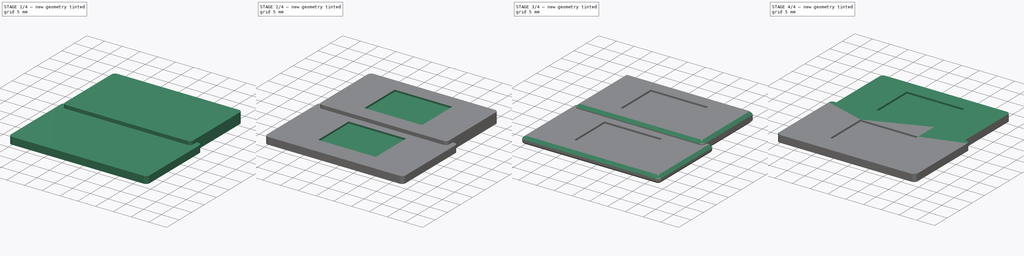
[diagram: build sequence overview — one tinted view per stage of 4, left to right]
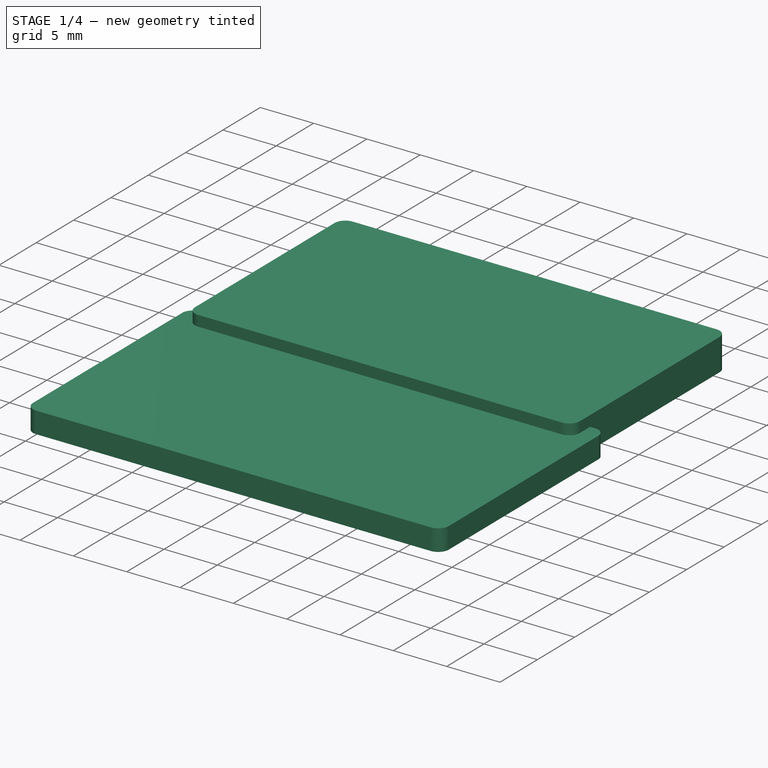
[diagram: stage 1 of 4 — iso view after this stage's code; geometry added in this stage tinted green]
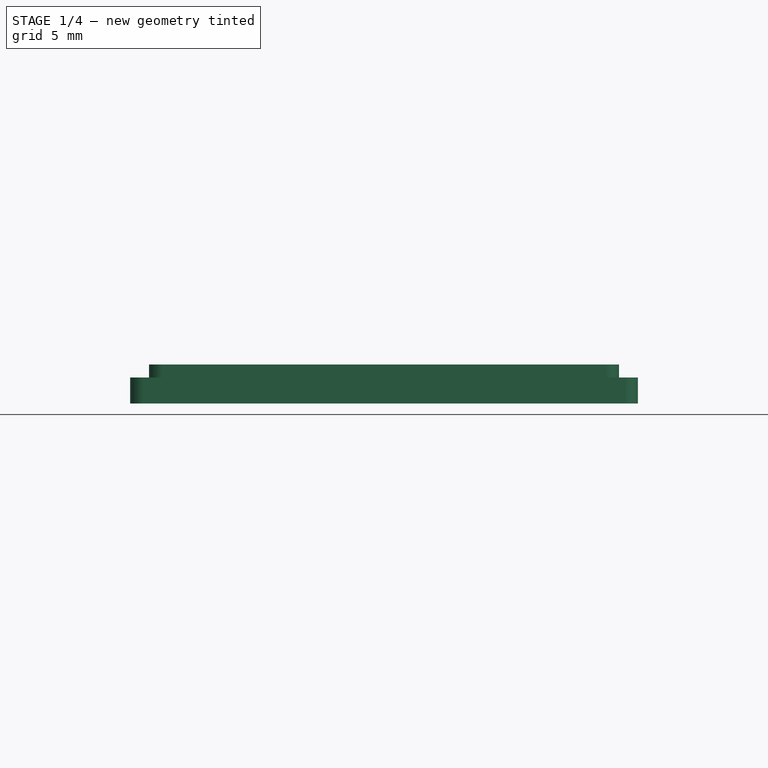
[diagram: stage 1 of 4 — front view after this stage's code; geometry added in this stage tinted green]
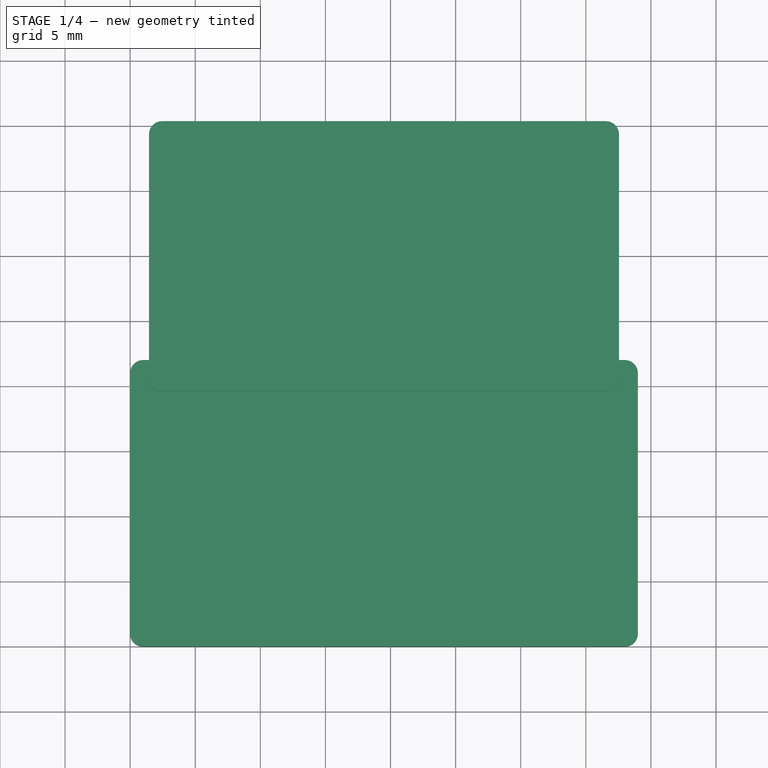
[diagram: stage 1 of 4 — top view after this stage's code; geometry added in this stage tinted green]
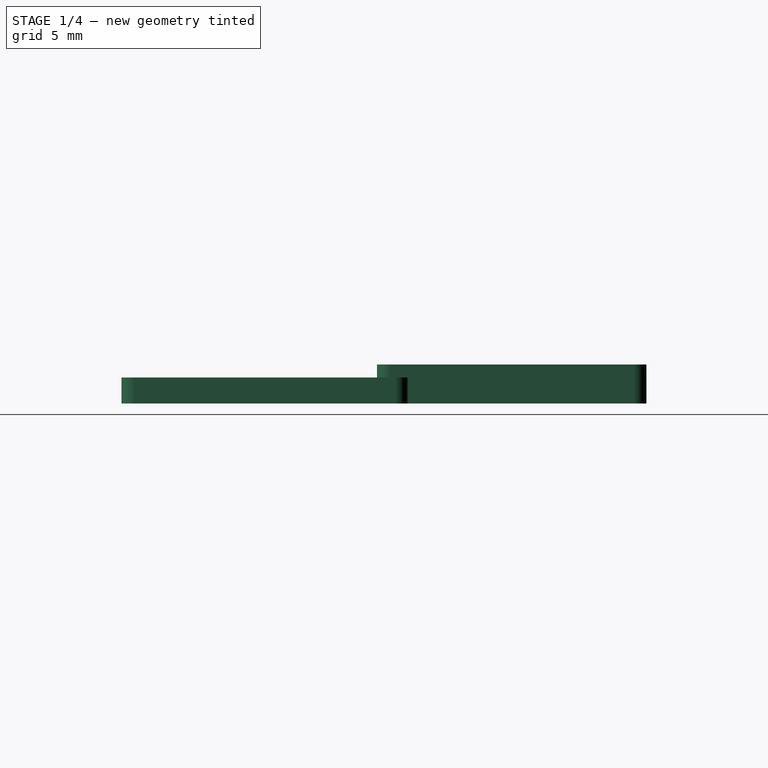
[diagram: stage 1 of 4 — right view after this stage's code; geometry added in this stage tinted green]
FCSTD DOCUMENT  (FreeCAD 0.20R29177 +426 (Git))
Label: DS Icon
License: All rights reserved
LicenseURL: http://en.wikipedia.org/wiki/All_rights_reserved
objects: Sketcher::SketchObject×5, PartDesign::Pocket×3, PartDesign::Pad×2, PartDesign::Chamfer×2, PartDesign::Body×2, PartDesign::Fillet×1, PartDesign::FeatureBase×1, PartDesign::ShapeBinder×1, App::Part×1
note: 25 computed .brp shape members not serialized (recipe doc carries the construction recipe); baked Part::Feature solids carry a one-line shape summary decoded from their .brp

FEATURE [Sketcher::SketchObject] Sketch
  FullyConstrained = true
  MapMode = 5
  Support = -> [XY_Plane001]
  sketch-geometry (24):
    g0: LineSegment StartX=0 StartY=0 StartZ=0 EndX=39 EndY=0 EndZ=0
    g1: LineSegment StartX=39 StartY=0 StartZ=0 EndX=39 EndY=22 EndZ=0
    g2: LineSegment StartX=39 StartY=22 StartZ=0 EndX=0 EndY=22 EndZ=0
    g3: LineSegment StartX=0 StartY=22 StartZ=0 EndX=0 EndY=0 EndZ=0
    g4: LineSegment StartX=1.45 StartY=0 StartZ=0 EndX=37.55 EndY=0 EndZ=0
    g5: LineSegment StartX=37.55 StartY=0 StartZ=0 EndX=37.55 EndY=40.33 EndZ=0
    g6: LineSegment StartX=37.55 StartY=40.33 StartZ=0 EndX=1.45 EndY=40.33 EndZ=0
    g7: LineSegment StartX=1.45 StartY=40.33 StartZ=0 EndX=1.45 EndY=0 EndZ=0
    g8: LineSegment StartX=0 StartY=22 StartZ=0 EndX=1.45 EndY=40.33 EndZ=0
    g9: LineSegment StartX=37.55 StartY=40.33 StartZ=0 EndX=39 EndY=22 EndZ=0
    g10: ArcOfCircle CenterX=1 CenterY=21 CenterZ=0 NormalX=0 NormalY=0 NormalZ=1 AngleXU=0 Radius=1 StartAngle=1.5708 EndAngle=3.14159
    g11: ArcOfCircle CenterX=1 CenterY=1 CenterZ=0 NormalX=0 NormalY=0 NormalZ=1 AngleXU=0 Radius=1 StartAngle=3.14159 EndAngle=4.71239
    g12: ArcOfCircle CenterX=38 CenterY=1 CenterZ=0 NormalX=0 NormalY=0 NormalZ=1 AngleXU=0 Radius=1 StartAngle=4.71239 EndAngle=6.28319
    g13: ArcOfCircle CenterX=38 CenterY=21 CenterZ=0 NormalX=0 NormalY=0 NormalZ=1 AngleXU=0 Radius=1 StartAngle=-1.8e-15 EndAngle=1.5708
    g14: ArcOfCircle CenterX=36.55 CenterY=39.33 CenterZ=0 NormalX=0 NormalY=0 NormalZ=1 AngleXU=0 Radius=1 StartAngle=2e-16 EndAngle=1.5708
    g15: ArcOfCircle CenterX=2.45 CenterY=39.33 CenterZ=0 NormalX=0 NormalY=0 NormalZ=1 AngleXU=0 Radius=1 StartAngle=1.5708 EndAngle=3.14159
    g16: LineSegment StartX=2.45 StartY=40.33 StartZ=0 EndX=36.55 EndY=40.33 EndZ=0
    g17: LineSegment StartX=37.55 StartY=39.33 StartZ=0 EndX=37.55 EndY=22 EndZ=0
    g18: LineSegment StartX=37.55 StartY=22 StartZ=0 EndX=38 EndY=22 EndZ=0
    g19: LineSegment StartX=39 StartY=21 StartZ=0 EndX=39 EndY=1 EndZ=0
    g20: LineSegment StartX=38 StartY=0 StartZ=0 EndX=1 EndY=0 EndZ=0
    g21: LineSegment StartX=0 StartY=1 StartZ=0 EndX=0 EndY=21 EndZ=0
    g22: LineSegment StartX=1 StartY=22 StartZ=0 EndX=1.45 EndY=22 EndZ=0
    g23: LineSegment StartX=1.45 StartY=22 StartZ=0 EndX=1.45 EndY=39.33 EndZ=0
  constraints (63):
    c: Coincident(g0,g1)
    c: Coincident(g1,g2)
    c: Coincident(g2,g3)
    c: Coincident(g3,g0)
    c: Horizontal(g0)
    c: Horizontal(g2)
    c: Vertical(g1)
    c: Vertical(g3)
    c: Coincident(g0,g-1)
    c: Distance(g0) = 39
    c: Distance(g1) = 22
    c: Coincident(g4,g5)
    c: Coincident(g5,g6)
    c: Coincident(g6,g7)
    c: Coincident(g7,g4)
    c: Horizontal(g4)
    c: Horizontal(g6)
    c: Vertical(g5)
    c: Vertical(g7)
    c: PointOnObject(g4,g0)
    c: Distance(g7) = 40.33
    c: Distance(g6) = 36.1
    c: Coincident(g8,g2)
    c: Coincident(g8,g6)
    c: Coincident(g9,g5)
    c: Coincident(g9,g1)
    c: Equal(g9,g8)
    c: Tangent(g15,g6) = -1.5708
    c: Tangent(g15,g7) = -1.5708
    c: Tangent(g14,g6) = -1.5708
    c: Tangent(g14,g5) = -1.5708
    c: Tangent(g13,g2) = -1.5708
    c: Tangent(g13,g1) = -1.5708
    c: Tangent(g12,g1) = -1.5708
    c: Tangent(g12,g0) = -1.5708
    c: Tangent(g11,g0) = -1.5708
    c: Tangent(g11,g3) = -1.5708
    c: Tangent(g10,g3) = -1.5708
    c: Tangent(g10,g2) = -1.5708
    c: Equal(g10,g11)
    c: Equal(g11,g12)
    c: Equal(g12,g13)
    c: Equal(g13,g14)
    c: Equal(g14,g15)
    c: Radius(g14) = 1
    c: Coincident(g16,g15)
    c: Coincident(g16,g14)
    c: Coincident(g17,g14)
    c: PointOnObject(g17,g2)
    c: Vertical(g17)
    c: Coincident(g18,g17)
    c: Coincident(g18,g13)
    c: Coincident(g19,g13)
    c: Coincident(g19,g12)
    c: Coincident(g20,g12)
    c: Coincident(g20,g11)
    c: Coincident(g21,g11)
    c: Coincident(g21,g10)
    c: Coincident(g22,g10)
    c: PointOnObject(g22,g7)
    c: Horizontal(g22)
    c: Coincident(g23,g22)
    c: Coincident(g23,g15)
FEATURE [PartDesign::Pad] Pad
  Direction = (0,0,1)
  Length = 2
  Length2 = 10
  Profile = -> Sketch
  ReferenceAxis = -> Sketch [N_Axis]
  Type = 0
FEATURE [Sketcher::SketchObject] Sketch001
  ExternalGeometry = -> [Pad]
  FullyConstrained = true
  MapMode = 5
  Placement = pos=(0,0,2) rot=(0,0,1;0rad)
  Support = -> [Pad]
  sketch-geometry (8):
    g0: LineSegment StartX=1.45 StartY=39.33 StartZ=0 EndX=1.45 EndY=20.63 EndZ=0
    g1: LineSegment StartX=2.45 StartY=40.33 StartZ=0 EndX=36.55 EndY=40.33 EndZ=0
    g2: LineSegment StartX=37.55 StartY=39.33 StartZ=0 EndX=37.55 EndY=20.63 EndZ=0
    g3: ArcOfCircle CenterX=2.45 CenterY=20.63 CenterZ=0 NormalX=0 NormalY=0 NormalZ=1 AngleXU=0 Radius=1 StartAngle=3.14159 EndAngle=4.71239
    g4: ArcOfCircle CenterX=36.55 CenterY=20.63 CenterZ=0 NormalX=0 NormalY=0 NormalZ=1 AngleXU=0 Radius=1 StartAngle=4.71239 EndAngle=6.28319
    g5: LineSegment StartX=2.45 StartY=19.63 StartZ=0 EndX=36.55 EndY=19.63 EndZ=0
    g6: ArcOfCircle CenterX=2.45 CenterY=39.33 CenterZ=0 NormalX=0 NormalY=0 NormalZ=1 AngleXU=0 Radius=1 StartAngle=1.5708 EndAngle=3.14159
    g7: ArcOfCircle CenterX=36.55 CenterY=39.33 CenterZ=0 NormalX=0 NormalY=0 NormalZ=1 AngleXU=0 Radius=1 StartAngle=1.8e-15 EndAngle=1.5708
  constraints (20):
    c: Coincident(g0,g-3)
    c: Vertical(g0)
    c: Coincident(g1,g-3)
    c: Coincident(g1,g-4)
    c: Coincident(g2,g-4)
    c: Vertical(g2)
    c: Tangent(g3,g0) = -1.5708
    c: Tangent(g4,g2) = 1.5708
    c: Equal(g-3,g3)
    c: Equal(g3,g4)
    c: Horizontal(g5)
    c: Tangent(g5,g3) = -1.5708
    c: Tangent(g5,g4) = -1.5708
    c: Distance(g4,g1) = 20.7
    c: Coincident(g6,g0)
    c: Coincident(g6,g1)
    c: Coincident(g7,g1)
    c: Coincident(g7,g2)
    c: Equal(g-4,g7)
    c: Equal(g-3,g6)
FEATURE [PartDesign::Pad] Pad001
  BaseFeature = -> Pad
  Direction = (0,0,1)
  Length = 1
  Length2 = 10
  Profile = -> Sketch001
  ReferenceAxis = -> Sketch001 [N_Axis]
  Refine = true
  Type = 0
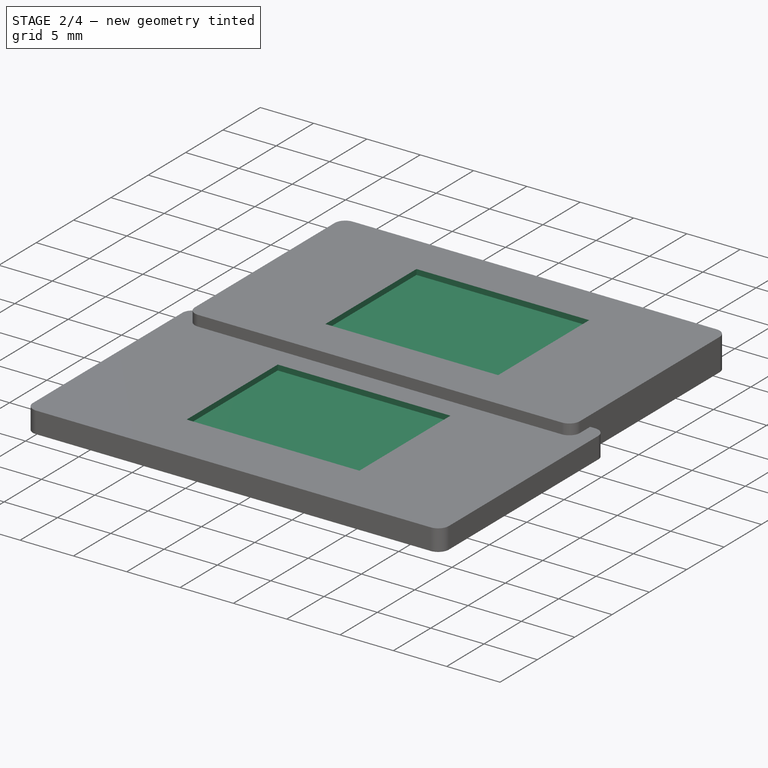
[diagram: stage 2 of 4 — iso view after this stage's code; geometry added in this stage tinted green]
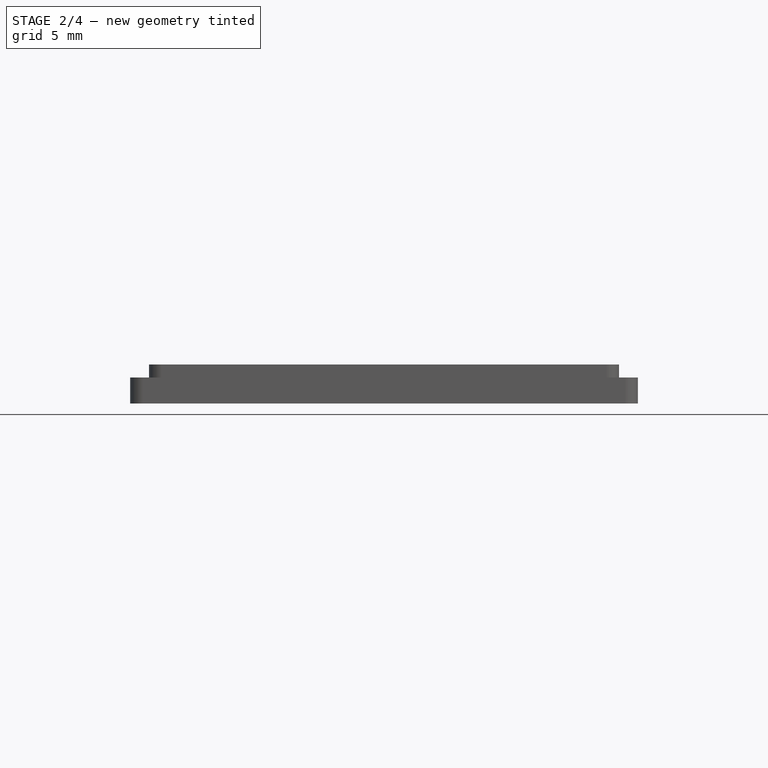
[diagram: stage 2 of 4 — front view after this stage's code; geometry added in this stage tinted green]
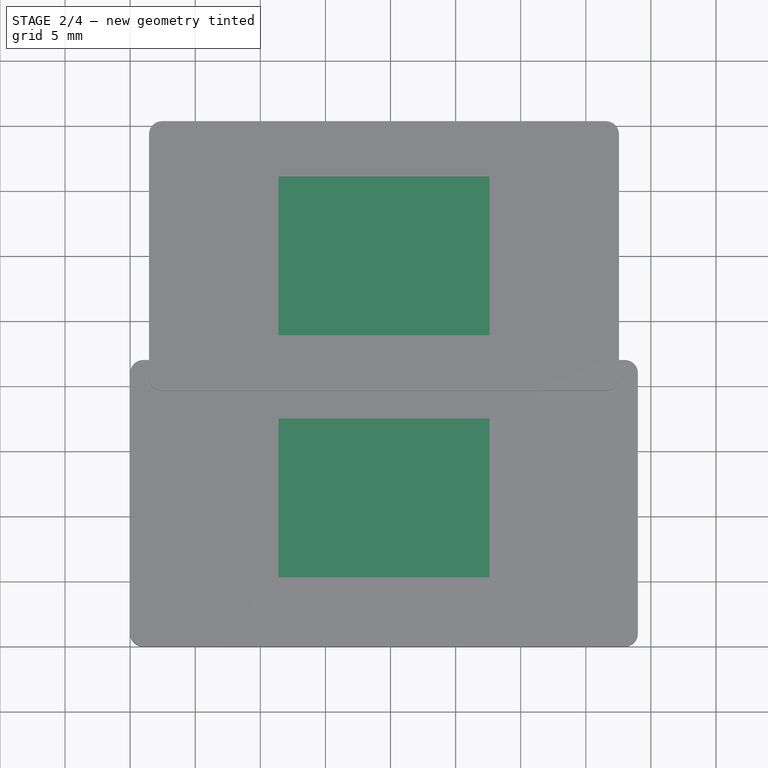
[diagram: stage 2 of 4 — top view after this stage's code; geometry added in this stage tinted green]
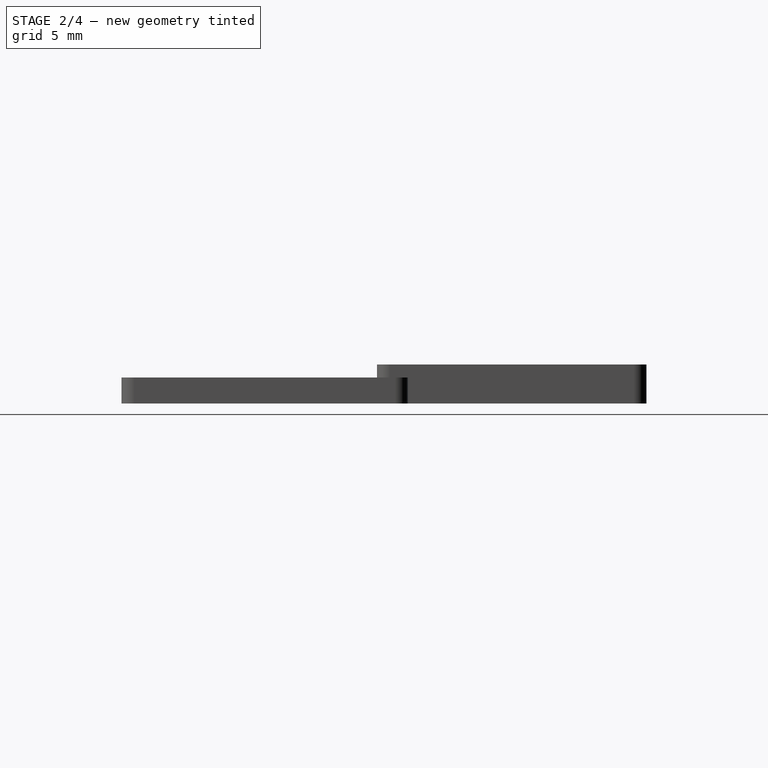
[diagram: stage 2 of 4 — right view after this stage's code; geometry added in this stage tinted green]
FEATURE [Sketcher::SketchObject] Sketch002
  ExternalGeometry = -> [Pad001]
  FullyConstrained = true
  MapMode = 5
  Placement = pos=(0,0,3) rot=(0,0,1;0rad)
  Support = -> [Pad001]
  sketch-geometry (12):
    g0: LineSegment StartX=11.4 StartY=36.08 StartZ=0 EndX=27.6 EndY=36.08 EndZ=0
    g1: LineSegment StartX=27.6 StartY=36.08 StartZ=0 EndX=27.6 EndY=23.88 EndZ=0
    g2: LineSegment StartX=27.6 StartY=23.88 StartZ=0 EndX=11.4 EndY=23.88 EndZ=0
    g3: LineSegment StartX=11.4 StartY=23.88 StartZ=0 EndX=11.4 EndY=36.08 EndZ=0
    g4: LineSegment StartX=37.55 StartY=20.63 StartZ=0 EndX=27.6 EndY=20.63 EndZ=0
    g5: LineSegment StartX=27.6 StartY=20.63 StartZ=0 EndX=27.6 EndY=23.88 EndZ=0
    g6: LineSegment StartX=27.6 StartY=23.88 StartZ=0 EndX=37.55 EndY=23.88 EndZ=0
    g7: LineSegment StartX=37.55 StartY=23.88 StartZ=0 EndX=37.55 EndY=20.63 EndZ=0
    g8: LineSegment StartX=1.45 StartY=39.33 StartZ=0 EndX=11.4 EndY=39.33 EndZ=0
    g9: LineSegment StartX=11.4 StartY=39.33 StartZ=0 EndX=11.4 EndY=36.08 EndZ=0
    g10: LineSegment StartX=11.4 StartY=36.08 StartZ=0 EndX=1.45 EndY=36.08 EndZ=0
    g11: LineSegment StartX=1.45 StartY=36.08 StartZ=0 EndX=1.45 EndY=39.33 EndZ=0
  constraints (32):
    c: Coincident(g0,g1)
    c: Coincident(g1,g2)
    c: Coincident(g2,g3)
    c: Coincident(g3,g0)
    c: Horizontal(g0)
    c: Horizontal(g2)
    c: Vertical(g1)
    c: Vertical(g3)
    c: Coincident(g4,g5)
    c: Coincident(g5,g6)
    c: Coincident(g6,g7)
    c: Coincident(g7,g4)
    c: Horizontal(g4)
    c: Horizontal(g6)
    c: Vertical(g5)
    c: Vertical(g7)
    c: Coincident(g4,g-4)
    c: Coincident(g5,g1)
    c: Coincident(g8,g9)
    c: Coincident(g9,g10)
    c: Coincident(g10,g11)
    c: Coincident(g11,g8)
    c: Horizontal(g8)
    c: Horizontal(g10)
    c: Vertical(g9)
    c: Vertical(g11)
    c: Coincident(g8,g-3)
    c: Coincident(g9,g0)
    c: Equal(g10,g6)
    c: Equal(g5,g9)
    c: Distance(g1) = 12.2
    c: Distance(g0) = 16.2
FEATURE [PartDesign::Pocket] Pocket
  BaseFeature = -> Pad001
  Direction = (0,0,-1)
  Length = 0.5
  Length2 = 5
  Profile = -> Sketch002
  ReferenceAxis = -> Sketch002 [N_Axis]
  Type = 0
FEATURE [Sketcher::SketchObject] Sketch003
  ExternalGeometry = -> [Pocket]
  FullyConstrained = true
  MapMode = 5
  Placement = pos=(0,0,2) rot=(0,0,1;0rad)
  Support = -> [Pocket]
  sketch-geometry (13):
    g0: LineSegment StartX=11.4 StartY=17.5 StartZ=0 EndX=27.6 EndY=17.5 EndZ=0
    g1: LineSegment StartX=27.6 StartY=17.5 StartZ=0 EndX=27.6 EndY=5.3 EndZ=0
    g2: LineSegment StartX=27.6 StartY=5.3 StartZ=0 EndX=11.4 EndY=5.3 EndZ=0
    g3: LineSegment StartX=11.4 StartY=5.3 StartZ=0 EndX=11.4 EndY=17.5 EndZ=0
    g4: LineSegment StartX=27.6 StartY=5.3 StartZ=0 EndX=39 EndY=5.3 EndZ=0
    g5: LineSegment StartX=39 StartY=5.3 StartZ=0 EndX=39 EndY=1 EndZ=0
    g6: LineSegment StartX=39 StartY=1 StartZ=0 EndX=27.6 EndY=1 EndZ=0
    g7: LineSegment StartX=27.6 StartY=1 StartZ=0 EndX=27.6 EndY=5.3 EndZ=0
    g8: LineSegment StartX=0 StartY=21 StartZ=0 EndX=11.4 EndY=21 EndZ=0
    g9: LineSegment StartX=11.4 StartY=21 StartZ=0 EndX=11.4 EndY=17.5 EndZ=0
    g10: LineSegment StartX=11.4 StartY=17.5 StartZ=0 EndX=0 EndY=17.5 EndZ=0
    g11: LineSegment StartX=0 StartY=17.5 StartZ=0 EndX=0 EndY=21 EndZ=0
    g12: LineSegment StartX=11.4 StartY=5.3 StartZ=0 EndX=11.4 EndY=0 EndZ=0
  constraints (35):
    c: Coincident(g0,g1)
    c: Coincident(g1,g2)
    c: Coincident(g2,g3)
    c: Coincident(g3,g0)
    c: Horizontal(g0)
    c: Horizontal(g2)
    c: Vertical(g1)
    c: Vertical(g3)
    c: Coincident(g4,g5)
    c: Coincident(g5,g6)
    c: Coincident(g6,g7)
    c: Coincident(g7,g4)
    c: Horizontal(g4)
    c: Horizontal(g6)
    c: Vertical(g5)
    c: Vertical(g7)
    c: Coincident(g4,g1)
    c: Coincident(g5,g-4)
    c: Coincident(g8,g9)
    c: Coincident(g9,g10)
    c: Coincident(g10,g11)
    c: Coincident(g11,g8)
    c: Horizontal(g8)
    c: Horizontal(g10)
    c: Vertical(g9)
    c: Vertical(g11)
    c: Coincident(g8,g-3)
    c: Coincident(g9,g0)
    c: Equal(g10,g4)
    c: Coincident(g12,g2)
    c: PointOnObject(g12,g-1)
    c: Vertical(g12)
    c: Distance(g12) = 5.3
    c: Distance(g2) = 16.2
    c: Distance(g1) = 12.2
FEATURE [PartDesign::Pocket] Pocket001
  BaseFeature = -> Pocket
  Direction = (0,0,-1)
  Length = 0.5
  Length2 = 5
  Profile = -> Sketch003
  ReferenceAxis = -> Sketch003 [N_Axis]
  Type = 0
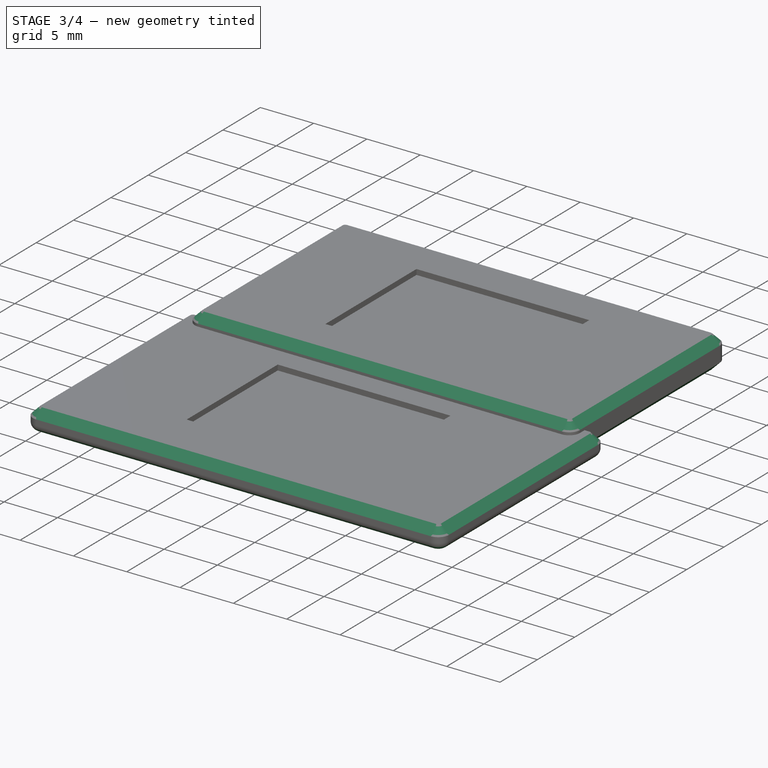
[diagram: stage 3 of 4 — iso view after this stage's code; geometry added in this stage tinted green]
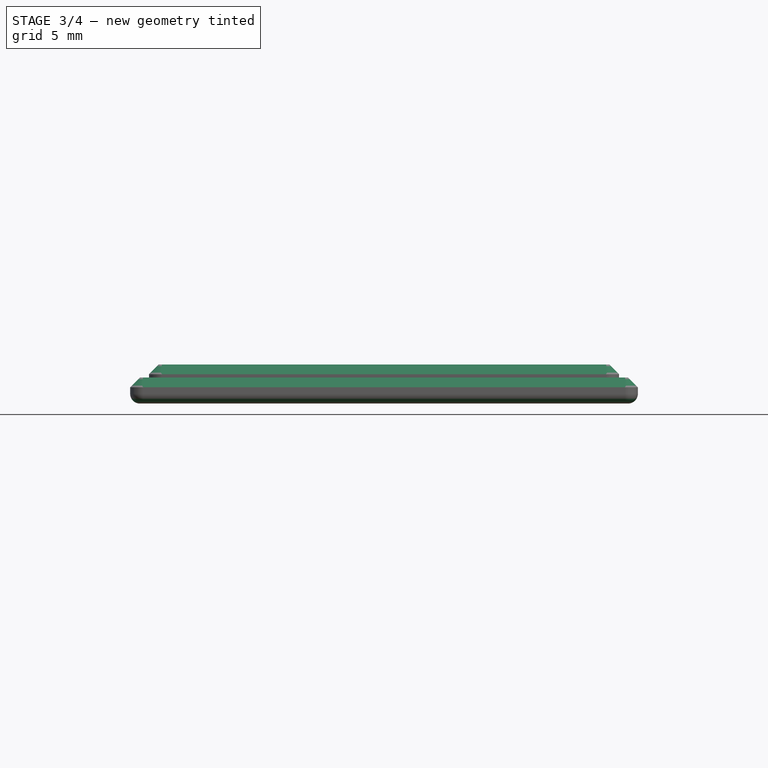
[diagram: stage 3 of 4 — front view after this stage's code; geometry added in this stage tinted green]
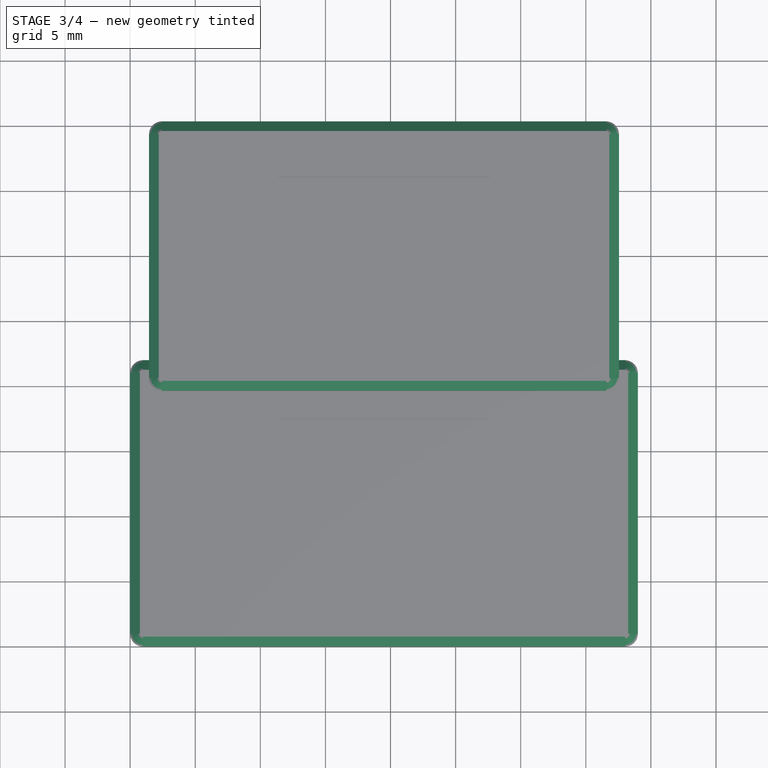
[diagram: stage 3 of 4 — top view after this stage's code; geometry added in this stage tinted green]
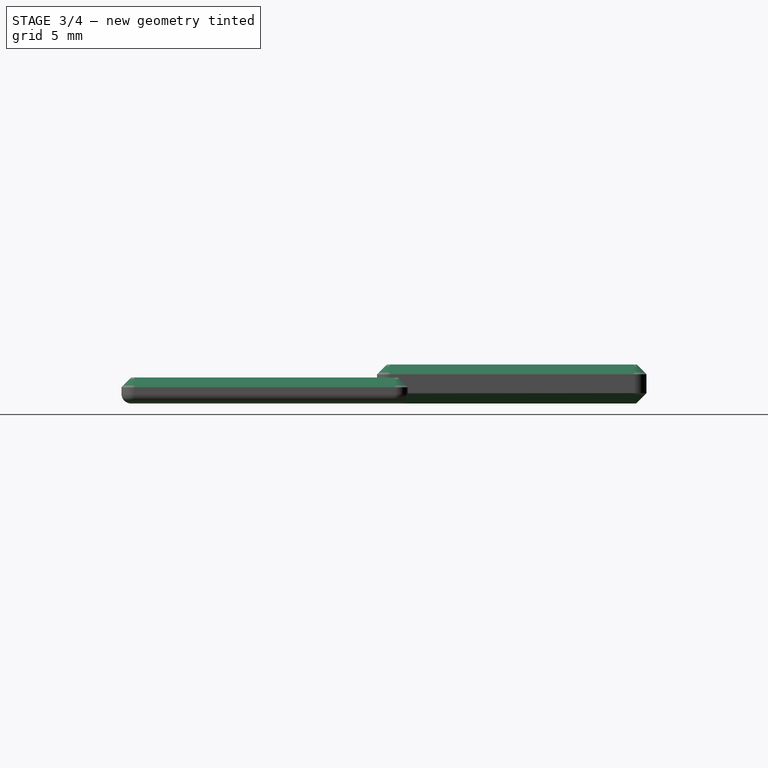
[diagram: stage 3 of 4 — right view after this stage's code; geometry added in this stage tinted green]
FEATURE [PartDesign::Chamfer] Chamfer
  Angle = 45
  Base = -> Pocket001 [Edge10,Edge47]
  BaseFeature = -> Pocket001
  ChamferType = 0
  FlipDirection = false
  Size = 0.75
  Size2 = 1
  SupportTransform = false
  UseAllEdges = false
FEATURE [PartDesign::Chamfer] Chamfer001
  Angle = 45
  Base = -> Chamfer [Edge18]
  BaseFeature = -> Chamfer
  ChamferType = 0
  FlipDirection = false
  Size = 0.8
  Size2 = 1
  SupportTransform = false
  UseAllEdges = false
FEATURE [PartDesign::Fillet] Fillet
  Base = -> Chamfer001 [Edge27]
  BaseFeature = -> Chamfer001
  Radius = 0.75
  SupportTransform = false
  UseAllEdges = false
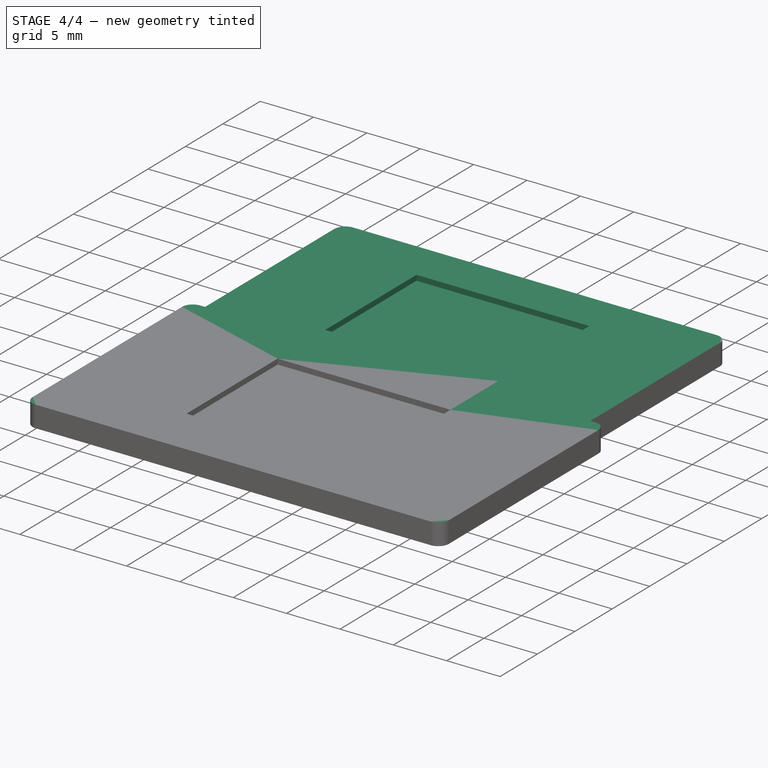
[diagram: stage 4 of 4 — iso view after this stage's code; geometry added in this stage tinted green]
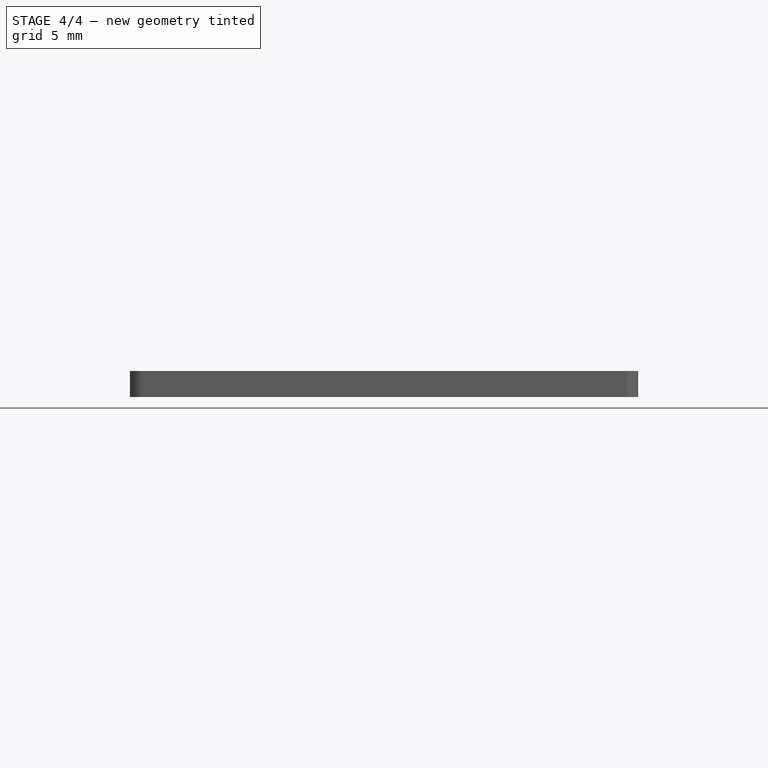
[diagram: stage 4 of 4 — front view after this stage's code; geometry added in this stage tinted green]
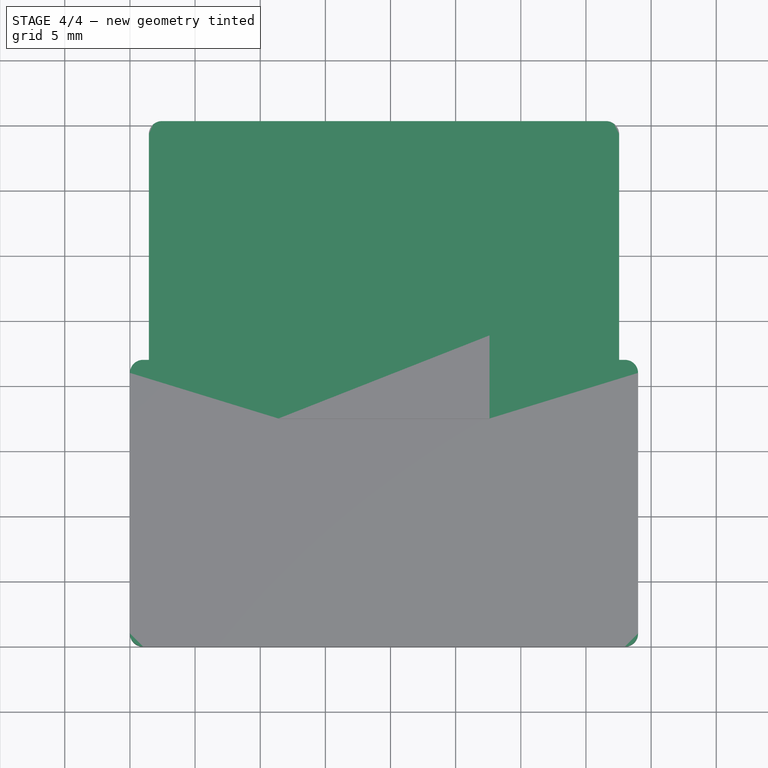
[diagram: stage 4 of 4 — top view after this stage's code; geometry added in this stage tinted green]
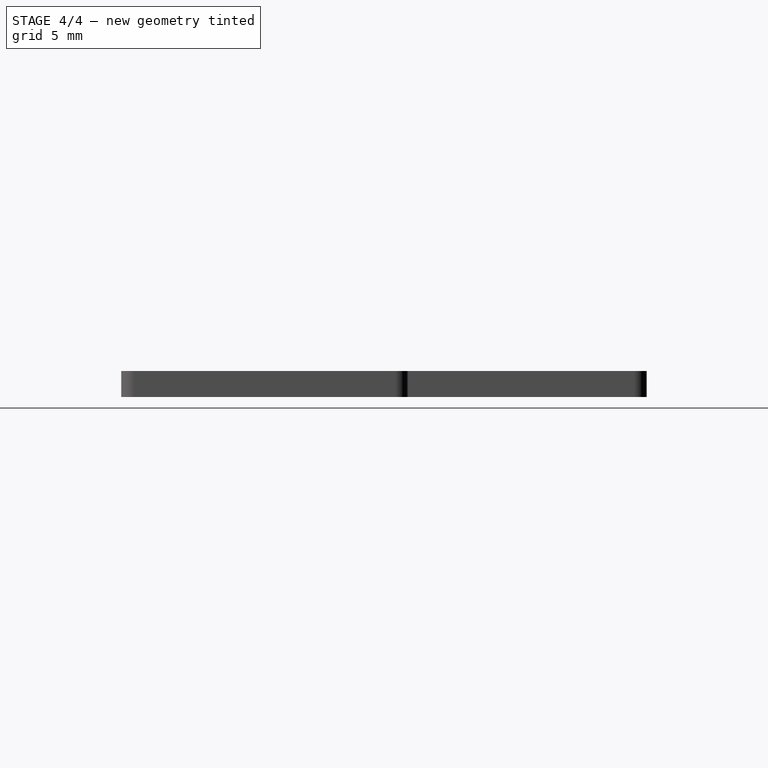
[diagram: stage 4 of 4 — right view after this stage's code; geometry added in this stage tinted green]
FEATURE [PartDesign::Body] Body  label="Key Chain"
  Group = -> [Sketch,Pad,Sketch001,Pad001,Sketch002,Pocket,Sketch003,Pocket001,Chamfer,Chamfer001,Fillet]
  Origin = -> Origin001
  Placement = pos=(50,0,0) rot=(0,0,1;0rad)
  Tip = -> Fillet
FEATURE [PartDesign::FeatureBase] Clone
  BaseFeature = -> Pad
FEATURE [PartDesign::ShapeBinder] ShapeBinder
  Support = -> [Fillet]
  TraceSupport = false
FEATURE [Sketcher::SketchObject] Sketch004
  ExternalGeometry = -> [ShapeBinder]
  FullyConstrained = true
  MapMode = 5
  Placement = pos=(0,0,2) rot=(0,0,1;0rad)
  Support = -> [Clone]
  sketch-geometry (8):
    g0: LineSegment StartX=11.4 StartY=17.5 StartZ=0 EndX=27.6 EndY=17.5 EndZ=0
    g1: LineSegment StartX=27.6 StartY=17.5 StartZ=0 EndX=27.6 EndY=5.3 EndZ=0
    g2: LineSegment StartX=27.6 StartY=5.3 StartZ=0 EndX=11.4 EndY=5.3 EndZ=0
    g3: LineSegment StartX=11.4 StartY=5.3 StartZ=0 EndX=11.4 EndY=17.5 EndZ=0
    g4: LineSegment StartX=27.6 StartY=23.88 StartZ=0 EndX=11.4 EndY=23.88 EndZ=0
    g5: LineSegment StartX=11.4 StartY=23.88 StartZ=0 EndX=11.4 EndY=36.08 EndZ=0
    g6: LineSegment StartX=11.4 StartY=36.08 StartZ=0 EndX=27.6 EndY=36.08 EndZ=0
    g7: LineSegment StartX=27.6 StartY=36.08 StartZ=0 EndX=27.6 EndY=23.88 EndZ=0
  constraints (20):
    c: Coincident(g0,g1)
    c: Coincident(g1,g2)
    c: Coincident(g2,g3)
    c: Coincident(g3,g0)
    c: Horizontal(g0)
    c: Horizontal(g2)
    c: Vertical(g1)
    c: Vertical(g3)
    c: Coincident(g0,g-6)
    c: Coincident(g1,g-5)
    c: Coincident(g4,g5)
    c: Coincident(g5,g6)
    c: Coincident(g6,g7)
    c: Coincident(g7,g4)
    c: Horizontal(g4)
    c: Horizontal(g6)
    c: Vertical(g5)
    c: Vertical(g7)
    c: Coincident(g4,g-4)
    c: Coincident(g5,g-3)
FEATURE [PartDesign::Pocket] Pocket002
  BaseFeature = -> Clone
  Direction = (0,0,-1)
  Length = 0.5
  Length2 = 5
  Profile = -> Sketch004
  ReferenceAxis = -> Sketch004 [N_Axis]
  Type = 0
FEATURE [PartDesign::Body] Body001  label="DS Icon"
  BaseFeature = -> Pad
  Group = -> [Clone,ShapeBinder,Sketch004,Pocket002]
  Origin = -> Origin002
  Tip = -> Pocket002
FEATURE [App::Part] Part  label="DS"
  Group = -> [Body,Body001]
  Origin = -> Origin
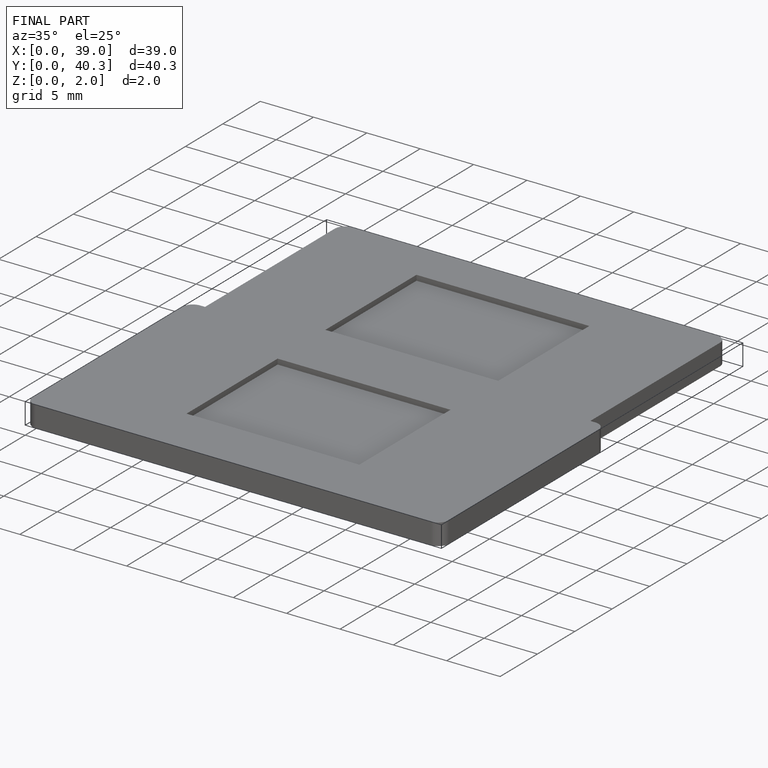
[diagram: finished part — iso view with bounding-box wireframe]
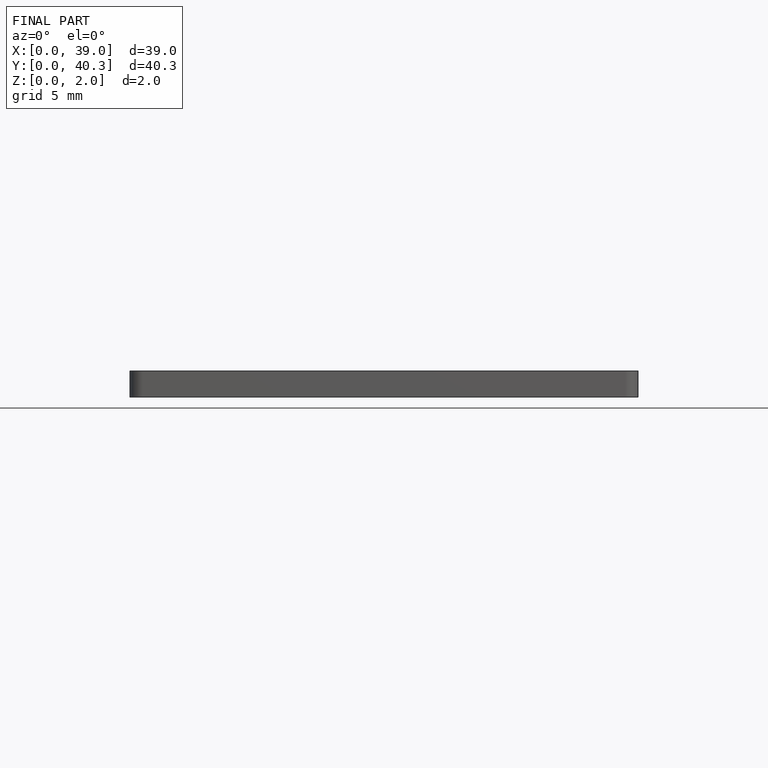
[diagram: finished part — front view with bounding-box wireframe]
